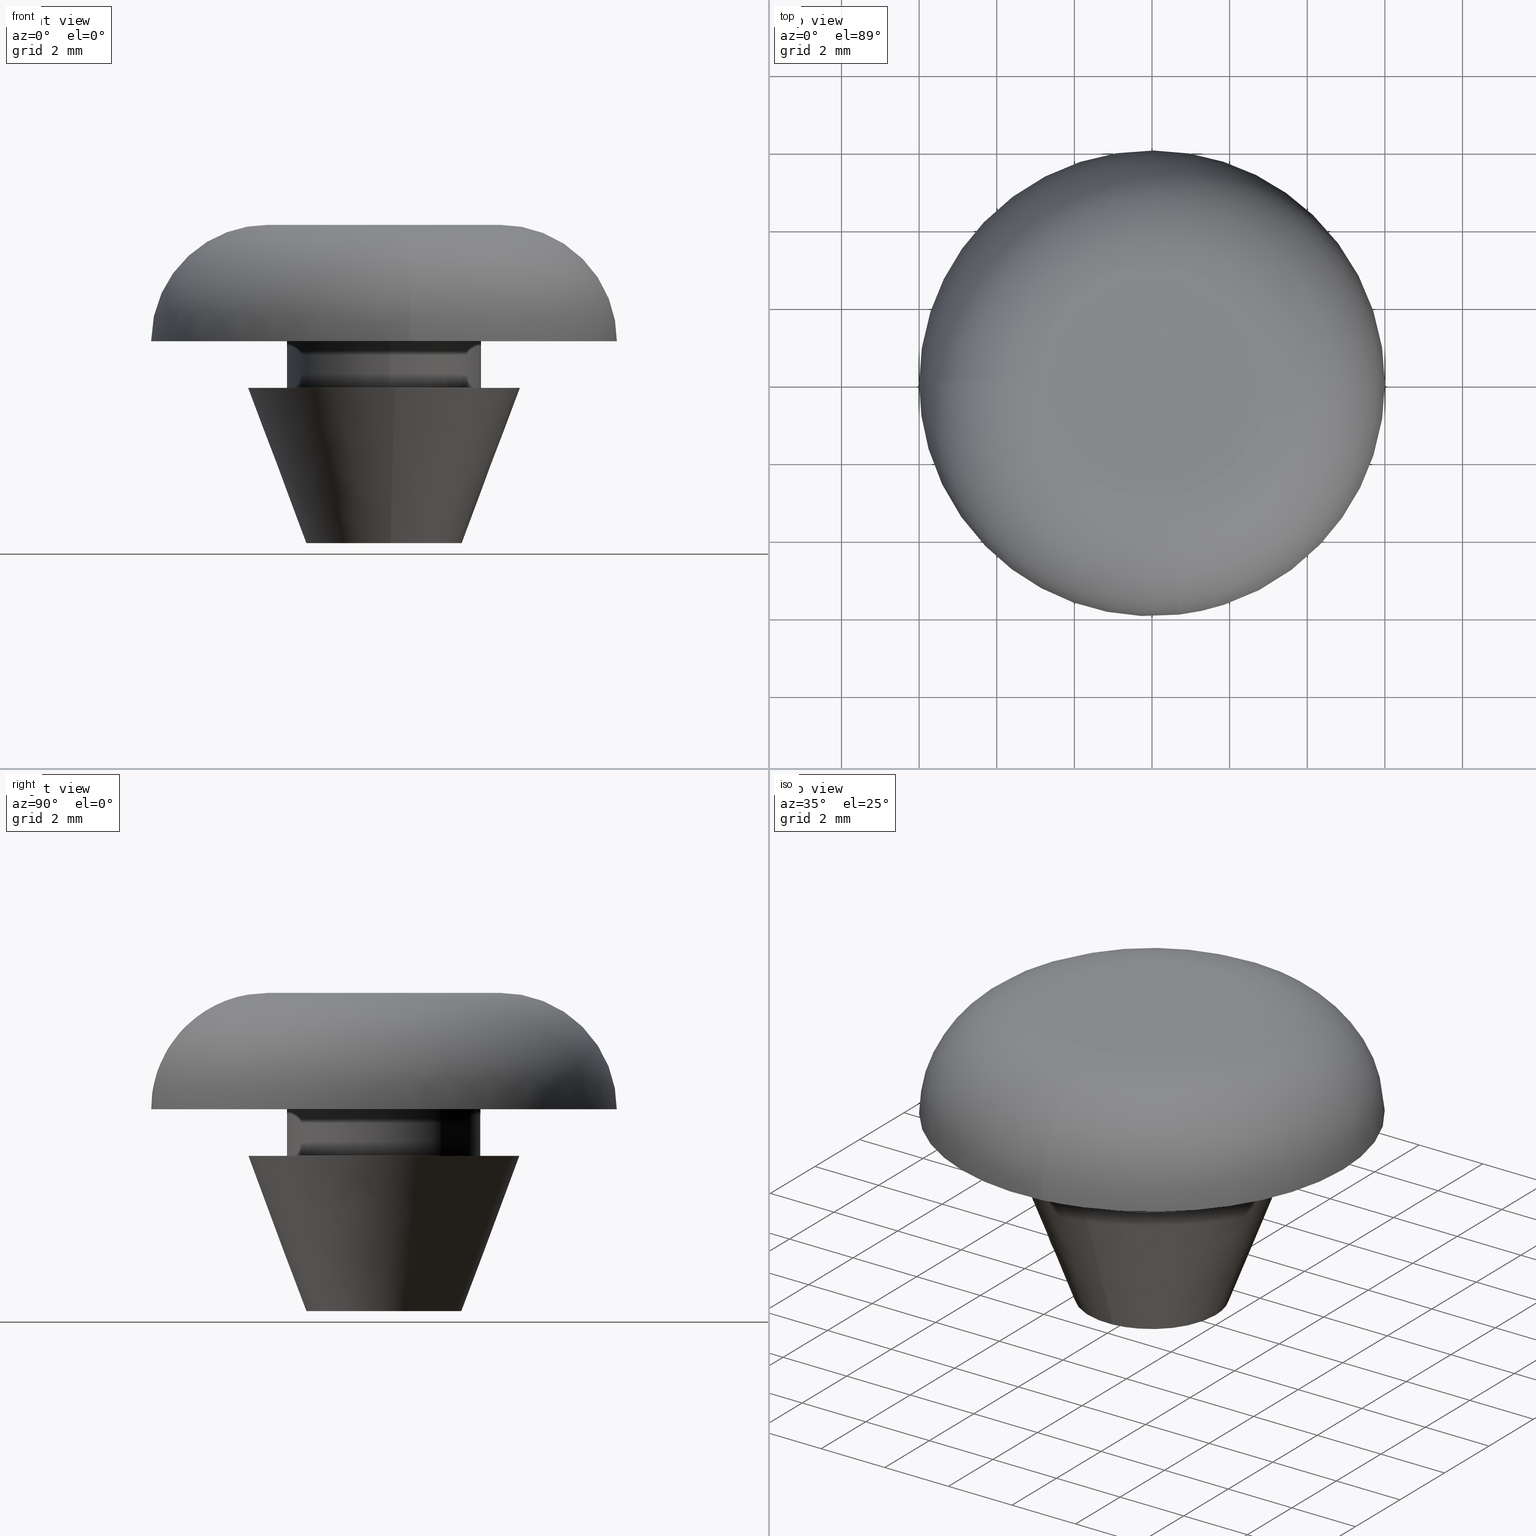
[diagram: canonical four-view strip — front | top / right | iso, engineering-drawing reading convention]
A machine part, canonical four-view strip (front | top / right | iso — engineering-drawing reading convention). The complete STEP part file that produces these views, byte-faithful:
ISO-10303-21;
HEADER;
/****************************************************************
 * Generated by software with PDE/Lib inside                    *
 * PDElib Version 4.4.1-0003, patched  Thursday August 19 11:58 *
 * International Technegroup Inc. (www.iti-oh.com)              *
 ****************************************************************/
FILE_DESCRIPTION((''),'2;1');
FILE_NAME('','2005-12-15T09:47:31',(''),(''),'','CADfix','');
FILE_SCHEMA(('AUTOMOTIVE_DESIGN'));
ENDSEC;
DATA;
#5=APPLICATION_CONTEXT('automotive design');
#6=APPLICATION_PROTOCOL_DEFINITION('Draft International Standard','automotive_design',1998,#5);
#7=PRODUCT_CONTEXT('None',#5,'mechanical');
#8=PRODUCT('cushion','','None',(#7));
#9=PRODUCT_RELATED_PRODUCT_CATEGORY('part','description',(#8));
#10=PRODUCT_DEFINITION_FORMATION('None','None',#8);
#11=PRODUCT_DEFINITION_CONTEXT('part definition',#5,'design');
#12=PRODUCT_DEFINITION('None','None',#10,#11);
#18=(NAMED_UNIT(*)PLANE_ANGLE_UNIT()SI_UNIT($,.RADIAN.));
#19=DIMENSIONAL_EXPONENTS(0.0,0.0,0.0,0.0,0.0,0.0,0.0);
#20=PLANE_ANGLE_MEASURE_WITH_UNIT(PLANE_ANGLE_MEASURE(0.017453292500000),#18);
#24=(CONVERSION_BASED_UNIT('DEGREE',#20)NAMED_UNIT(#19)PLANE_ANGLE_UNIT());
#28=(NAMED_UNIT(*)SI_UNIT($,.STERADIAN.)SOLID_ANGLE_UNIT());
#32=(LENGTH_UNIT()NAMED_UNIT(*)SI_UNIT(.MILLI.,.METRE.));
#34=UNCERTAINTY_MEASURE_WITH_UNIT(LENGTH_MEASURE(0.001000000000000),#32,'DISTANCE_ACCURACY_VALUE','');
#36=(GEOMETRIC_REPRESENTATION_CONTEXT(3)GLOBAL_UNCERTAINTY_ASSIGNED_CONTEXT((#34))GLOBAL_UNIT_ASSIGNED_CONTEXT((#24,#28,#32))REPRESENTATION_CONTEXT('None','None'));
#37=AXIS2_PLACEMENT_3D('',#38,#39,#40);
#38=CARTESIAN_POINT('',(0.0,0.0,0.0));
#39=DIRECTION('',(0.0,0.0,1.0));
#40=DIRECTION('',(1.0,0.0,0.0));
#41=ADVANCED_BREP_SHAPE_REPRESENTATION('',(#37,#891),#36);
#42=PRODUCT_DEFINITION_SHAPE('','',#12);
#43=SHAPE_DEFINITION_REPRESENTATION(#42,#41);
#44=CARTESIAN_POINT('',(0.177051351985138,-1.489514289545500,5.330000000000002));
#45=CARTESIAN_POINT('',(0.134422092956966,-1.494581423172908,5.330000000000002));
#46=CARTESIAN_POINT('',(0.091572809302285,-1.497202197632800,5.330000000000001));
#47=CARTESIAN_POINT('',(-1.405629388330515,-1.588775006935085,5.330000000000001));
#48=CARTESIAN_POINT('',(-1.497202197632800,-0.091572809302285,5.330000000000001));
#49=CARTESIAN_POINT('',(-1.588775006935085,1.405629388330515,5.330000000000001));
#50=CARTESIAN_POINT('',(-0.091572809302285,1.497202197632800,5.330000000000001));
#51=CARTESIAN_POINT('',(0.177051351985138,-1.489514289545500,-0.133250000000000));
#52=CARTESIAN_POINT('',(0.134422092956966,-1.494581423172908,-0.133250000000000));
#53=CARTESIAN_POINT('',(0.091572809302285,-1.497202197632800,-0.133250000000000));
#54=CARTESIAN_POINT('',(-1.405629388330515,-1.588775006935085,-0.133250000000000));
#55=CARTESIAN_POINT('',(-1.497202197632800,-0.091572809302285,-0.133250000000000));
#56=CARTESIAN_POINT('',(-1.588775006935085,1.405629388330515,-0.133250000000000));
#57=CARTESIAN_POINT('',(-0.091572809302285,1.497202197632800,-0.133250000000000));
#65=(BOUNDED_SURFACE()B_SPLINE_SURFACE(2,1,((#44,#51),(#45,#52),(#46,#53),(#47,#54),(#48,#55),(#49,#56),(#50,#57)),.UNSPECIFIED.,.F.,.F.,.U.)B_SPLINE_SURFACE_WITH_KNOTS((3,2,2,3),(2,2),(3.078760800517997,3.141592653589793,4.712388980384690,6.283185307179586),(0.0,5.463250000000002),.UNSPECIFIED.)GEOMETRIC_REPRESENTATION_ITEM()RATIONAL_B_SPLINE_SURFACE(((0.977505800795127,0.977505800795127),(0.988284271247462,0.988284271247462),(1.0,1.0),(0.707106781186548,0.707106781186548),(1.0,1.0),(0.707106781186548,0.707106781186548),(1.0,1.0)))REPRESENTATION_ITEM('')SURFACE());
#66=CARTESIAN_POINT('',(0.177051351995047,-1.489514289544322,5.200000000000000));
#67=VERTEX_POINT('',#66);
#68=CARTESIAN_POINT('',(-1.500000000000000,0.0,5.200000000000000));
#69=VERTEX_POINT('',#68);
#70=CARTESIAN_POINT('',(0.177051351995047,-1.489514289544321,5.200000000000000));
#71=CARTESIAN_POINT('',(0.088836179487880,-1.500000000000000,5.200000000000002));
#72=CARTESIAN_POINT('',(0.0,-1.500000000000000,5.200000000000000));
#73=CARTESIAN_POINT('',(-1.500000000000000,-1.500000000000000,5.199999999999999));
#74=CARTESIAN_POINT('',(-1.500000000000000,0.0,5.200000000000000));
#82=(BOUNDED_CURVE()B_SPLINE_CURVE(2,(#70,#71,#72,#73,#74),.UNSPECIFIED.,.F.,.U.)B_SPLINE_CURVE_WITH_KNOTS((3,2,3),(0.229562473513396,0.250000000000000,0.500000000000000),.UNSPECIFIED.)CURVE()GEOMETRIC_REPRESENTATION_ITEM()RATIONAL_B_SPLINE_CURVE((0.956026754183478,0.976055948331013,1.0,0.707106781186548,1.0))REPRESENTATION_ITEM(''));
#83=EDGE_CURVE('',#67,#69,#82,.T.);
#84=ORIENTED_EDGE('',*,*,#83,.F.);
#85=CARTESIAN_POINT('',(0.177051351995047,-1.489514289544322,-8.518285E-017));
#86=VERTEX_POINT('',#85);
#87=CARTESIAN_POINT('',(0.177051351995047,-1.489514289544322,5.200000000000000));
#88=CARTESIAN_POINT('',(0.177051351995047,-1.489514289544322,-8.518285E-017));
#89=QUASI_UNIFORM_CURVE('',1,(#87,#88),.UNSPECIFIED.,.F.,.U.);
#90=EDGE_CURVE('',#67,#86,#89,.T.);
#91=ORIENTED_EDGE('',*,*,#90,.T.);
#92=CARTESIAN_POINT('',(-1.500000000000000,0.0,0.0));
#93=VERTEX_POINT('',#92);
#94=CARTESIAN_POINT('',(0.177051351995047,-1.489514289544321,-8.518285E-017));
#95=CARTESIAN_POINT('',(0.088836179487880,-1.500000000000000,0.0));
#96=CARTESIAN_POINT('',(0.0,-1.500000000000000,0.0));
#97=CARTESIAN_POINT('',(-1.500000000000000,-1.500000000000000,0.0));
#98=CARTESIAN_POINT('',(-1.500000000000000,0.0,0.0));
#106=(BOUNDED_CURVE()B_SPLINE_CURVE(2,(#94,#95,#96,#97,#98),.UNSPECIFIED.,.F.,.U.)B_SPLINE_CURVE_WITH_KNOTS((3,2,3),(0.229562473513396,0.250000000000000,0.500000000000000),.UNSPECIFIED.)CURVE()GEOMETRIC_REPRESENTATION_ITEM()RATIONAL_B_SPLINE_CURVE((0.956026754183478,0.976055948331013,1.0,0.707106781186548,1.0))REPRESENTATION_ITEM(''));
#107=EDGE_CURVE('',#86,#93,#106,.T.);
#108=ORIENTED_EDGE('',*,*,#107,.T.);
#109=CARTESIAN_POINT('',(-0.091572809316450,1.497202197631934,-8.326673E-017));
#110=VERTEX_POINT('',#109);
#111=CARTESIAN_POINT('',(-1.500000000000000,0.0,0.0));
#112=CARTESIAN_POINT('',(-1.500000000000000,1.411059100331790,0.0));
#113=CARTESIAN_POINT('',(-0.091572809316450,1.497202197631934,-8.326673E-017));
#121=(BOUNDED_CURVE()B_SPLINE_CURVE(2,(#111,#112,#113),.UNSPECIFIED.,.F.,.U.)B_SPLINE_CURVE_WITH_KNOTS((3,3),(0.500000000000000,0.739332962238703),.UNSPECIFIED.)CURVE()GEOMETRIC_REPRESENTATION_ITEM()RATIONAL_B_SPLINE_CURVE((1.0,0.719603993286991,0.976072041666204))REPRESENTATION_ITEM(''));
#122=EDGE_CURVE('',#93,#110,#121,.T.);
#123=ORIENTED_EDGE('',*,*,#122,.T.);
#124=CARTESIAN_POINT('',(-0.091572809316450,1.497202197631934,5.200000000000000));
#125=VERTEX_POINT('',#124);
#126=CARTESIAN_POINT('',(-0.091572809316450,1.497202197631934,5.200000000000000));
#127=CARTESIAN_POINT('',(-0.091572809316450,1.497202197631934,-8.326673E-017));
#128=QUASI_UNIFORM_CURVE('',1,(#126,#127),.UNSPECIFIED.,.F.,.U.);
#129=EDGE_CURVE('',#125,#110,#128,.T.);
#130=ORIENTED_EDGE('',*,*,#129,.F.);
#131=CARTESIAN_POINT('',(-1.500000000000000,0.0,5.200000000000000));
#132=CARTESIAN_POINT('',(-1.500000000000000,1.411059100331790,5.199999999999999));
#133=CARTESIAN_POINT('',(-0.091572809316450,1.497202197631934,5.200000000000000));
#141=(BOUNDED_CURVE()B_SPLINE_CURVE(2,(#131,#132,#133),.UNSPECIFIED.,.F.,.U.)B_SPLINE_CURVE_WITH_KNOTS((3,3),(0.500000000000000,0.739332962238703),.UNSPECIFIED.)CURVE()GEOMETRIC_REPRESENTATION_ITEM()RATIONAL_B_SPLINE_CURVE((1.0,0.719603993286991,0.976072041666204))REPRESENTATION_ITEM(''));
#142=EDGE_CURVE('',#69,#125,#141,.T.);
#143=ORIENTED_EDGE('',*,*,#142,.F.);
#144=EDGE_LOOP('',(#84,#91,#108,#123,#130,#143));
#145=FACE_OUTER_BOUND('',#144,.T.);
#146=ADVANCED_FACE('',(#145),#65,.F.);
#147=CARTESIAN_POINT('',(-0.091572809302285,1.497202197632800,5.330000000000001));
#148=CARTESIAN_POINT('',(1.405629388330515,1.588775006935085,5.330000000000001));
#149=CARTESIAN_POINT('',(1.497202197632800,0.091572809302285,5.330000000000001));
#150=CARTESIAN_POINT('',(1.583679295098791,-1.322315236259252,5.330000000000002));
#151=CARTESIAN_POINT('',(0.177051351985138,-1.489514289545500,5.330000000000002));
#152=CARTESIAN_POINT('',(-0.091572809302285,1.497202197632800,-0.133250000000000));
#153=CARTESIAN_POINT('',(1.405629388330515,1.588775006935085,-0.133250000000000));
#154=CARTESIAN_POINT('',(1.497202197632800,0.091572809302285,-0.133250000000000));
#155=CARTESIAN_POINT('',(1.583679295098791,-1.322315236259252,-0.133250000000000));
#156=CARTESIAN_POINT('',(0.177051351985138,-1.489514289545500,-0.133250000000000));
#164=(BOUNDED_SURFACE()B_SPLINE_SURFACE(2,1,((#147,#152),(#148,#153),(#149,#154),(#150,#155),(#151,#156)),.UNSPECIFIED.,.F.,.F.,.U.)B_SPLINE_SURFACE_WITH_KNOTS((3,2,3),(2,2),(0.0,1.570796326794897,3.078760800517997),(0.0,5.463250000000002),.UNSPECIFIED.)GEOMETRIC_REPRESENTATION_ITEM()RATIONAL_B_SPLINE_SURFACE(((1.0,1.0),(0.707106781186548,0.707106781186548),(1.0,1.0),(0.718822509939086,0.718822509939086),(0.977505800795127,0.977505800795127)))REPRESENTATION_ITEM('')SURFACE());
#165=CARTESIAN_POINT('',(1.500000000000000,0.0,5.200000000000000));
#166=VERTEX_POINT('',#165);
#167=CARTESIAN_POINT('',(1.500000000000000,0.0,5.200000000000000));
#168=CARTESIAN_POINT('',(1.500000000000000,-1.332261788909200,5.200000000000000));
#169=CARTESIAN_POINT('',(0.177051351995047,-1.489514289544321,5.200000000000000));
#177=(BOUNDED_CURVE()B_SPLINE_CURVE(2,(#167,#168,#169),.UNSPECIFIED.,.F.,.U.)B_SPLINE_CURVE_WITH_KNOTS((3,3),(0.0,0.229562473513396),.UNSPECIFIED.)CURVE()GEOMETRIC_REPRESENTATION_ITEM()RATIONAL_B_SPLINE_CURVE((1.0,0.731050832855535,0.956026754183478))REPRESENTATION_ITEM(''));
#178=EDGE_CURVE('',#166,#67,#177,.T.);
#179=ORIENTED_EDGE('',*,*,#178,.F.);
#180=CARTESIAN_POINT('',(-0.091572809316450,1.497202197631934,5.200000000000000));
#181=CARTESIAN_POINT('',(-0.045829144962088,1.500000000000000,5.200000000000000));
#182=CARTESIAN_POINT('',(0.0,1.500000000000000,5.200000000000000));
#183=CARTESIAN_POINT('',(1.500000000000000,1.500000000000000,5.199999999999999));
#184=CARTESIAN_POINT('',(1.500000000000000,0.0,5.200000000000000));
#192=(BOUNDED_CURVE()B_SPLINE_CURVE(2,(#180,#181,#182,#183,#184),.UNSPECIFIED.,.F.,.U.)B_SPLINE_CURVE_WITH_KNOTS((3,2,3),(0.739332962238703,0.750000000000000,1.0),.UNSPECIFIED.)CURVE()GEOMETRIC_REPRESENTATION_ITEM()RATIONAL_B_SPLINE_CURVE((0.976072041666204,0.987502787899557,1.0,0.707106781186548,1.0))REPRESENTATION_ITEM(''));
#193=EDGE_CURVE('',#125,#166,#192,.T.);
#194=ORIENTED_EDGE('',*,*,#193,.F.);
#195=ORIENTED_EDGE('',*,*,#129,.T.);
#196=CARTESIAN_POINT('',(1.500000000000000,0.0,0.0));
#197=VERTEX_POINT('',#196);
#198=CARTESIAN_POINT('',(-0.091572809316450,1.497202197631934,-8.326673E-017));
#199=CARTESIAN_POINT('',(-0.045829144962088,1.500000000000000,0.0));
#200=CARTESIAN_POINT('',(0.0,1.500000000000000,0.0));
#201=CARTESIAN_POINT('',(1.500000000000000,1.500000000000000,0.0));
#202=CARTESIAN_POINT('',(1.500000000000000,0.0,0.0));
#210=(BOUNDED_CURVE()B_SPLINE_CURVE(2,(#198,#199,#200,#201,#202),.UNSPECIFIED.,.F.,.U.)B_SPLINE_CURVE_WITH_KNOTS((3,2,3),(0.739332962238703,0.750000000000000,1.0),.UNSPECIFIED.)CURVE()GEOMETRIC_REPRESENTATION_ITEM()RATIONAL_B_SPLINE_CURVE((0.976072041666204,0.987502787899557,1.0,0.707106781186548,1.0))REPRESENTATION_ITEM(''));
#211=EDGE_CURVE('',#110,#197,#210,.T.);
#212=ORIENTED_EDGE('',*,*,#211,.T.);
#213=CARTESIAN_POINT('',(1.500000000000000,0.0,0.0));
#214=CARTESIAN_POINT('',(1.500000000000000,-1.332261788909200,0.0));
#215=CARTESIAN_POINT('',(0.177051351995047,-1.489514289544321,-8.518285E-017));
#223=(BOUNDED_CURVE()B_SPLINE_CURVE(2,(#213,#214,#215),.UNSPECIFIED.,.F.,.U.)B_SPLINE_CURVE_WITH_KNOTS((3,3),(0.0,0.229562473513396),.UNSPECIFIED.)CURVE()GEOMETRIC_REPRESENTATION_ITEM()RATIONAL_B_SPLINE_CURVE((1.0,0.731050832855535,0.956026754183478))REPRESENTATION_ITEM(''));
#224=EDGE_CURVE('',#197,#86,#223,.T.);
#225=ORIENTED_EDGE('',*,*,#224,.T.);
#226=ORIENTED_EDGE('',*,*,#90,.F.);
#227=EDGE_LOOP('',(#179,#194,#195,#212,#225,#226));
#228=FACE_OUTER_BOUND('',#227,.T.);
#229=ADVANCED_FACE('',(#228),#164,.F.);
#230=CARTESIAN_POINT('',(-0.295085586641896,2.482523815909166,5.230000000000003));
#231=CARTESIAN_POINT('',(-0.224036821594944,2.490969038621514,5.230000000000001));
#232=CARTESIAN_POINT('',(-0.152621348837143,2.495336996054667,5.230000000000001));
#233=CARTESIAN_POINT('',(2.342715647217524,2.647958344891809,5.230000000000002));
#234=CARTESIAN_POINT('',(2.495336996054667,0.152621348837143,5.230000000000001));
#235=CARTESIAN_POINT('',(2.647958344891809,-2.342715647217524,5.230000000000002));
#236=CARTESIAN_POINT('',(0.152621348837143,-2.495336996054667,5.230000000000001));
#237=CARTESIAN_POINT('',(-0.295085586641896,2.482523815909166,3.969250000000000));
#238=CARTESIAN_POINT('',(-0.224036821594944,2.490969038621514,3.969250000000000));
#239=CARTESIAN_POINT('',(-0.152621348837143,2.495336996054667,3.969250000000000));
#240=CARTESIAN_POINT('',(2.342715647217524,2.647958344891809,3.969250000000000));
#241=CARTESIAN_POINT('',(2.495336996054667,0.152621348837143,3.969250000000000));
#242=CARTESIAN_POINT('',(2.647958344891809,-2.342715647217524,3.969250000000000));
#243=CARTESIAN_POINT('',(0.152621348837143,-2.495336996054667,3.969250000000000));
#251=(BOUNDED_SURFACE()B_SPLINE_SURFACE(2,1,((#230,#237),(#231,#238),(#232,#239),(#233,#240),(#234,#241),(#235,#242),(#236,#243)),.UNSPECIFIED.,.F.,.F.,.U.)B_SPLINE_SURFACE_WITH_KNOTS((3,2,2,3),(2,2),(0.0,0.165685424949238,4.307821048680188,8.449956672411137),(0.0,1.0),.UNSPECIFIED.)GEOMETRIC_REPRESENTATION_ITEM()RATIONAL_B_SPLINE_SURFACE(((0.977505800795127,0.977505800795127),(0.988284271247462,0.988284271247462),(1.0,1.0),(0.707106781186548,0.707106781186548),(1.0,1.0),(0.707106781186548,0.707106781186548),(1.0,1.0)))REPRESENTATION_ITEM('')SURFACE());
#252=CARTESIAN_POINT('',(-0.295083869908955,2.482524019967695,5.200000000000022));
#253=VERTEX_POINT('',#252);
#254=CARTESIAN_POINT('',(2.500000000000000,0.0,5.200000000000000));
#255=VERTEX_POINT('',#254);
#256=CARTESIAN_POINT('',(-0.295083869908955,2.482524019967694,5.200000000000022));
#257=CARTESIAN_POINT('',(-0.148059431688853,2.499999999999999,5.199999999999999));
#258=CARTESIAN_POINT('',(0.0,2.500000000000000,5.200000000000000));
#259=CARTESIAN_POINT('',(2.500000000000000,2.500000000000000,5.199999999999999));
#260=CARTESIAN_POINT('',(2.500000000000000,0.0,5.200000000000000));
#268=(BOUNDED_CURVE()B_SPLINE_CURVE(2,(#256,#257,#258,#259,#260),.UNSPECIFIED.,.F.,.U.)B_SPLINE_CURVE_WITH_KNOTS((3,2,3),(0.229562590386006,0.250000000000000,0.500000000000000),.UNSPECIFIED.)CURVE()GEOMETRIC_REPRESENTATION_ITEM()RATIONAL_B_SPLINE_CURVE((0.956026983258707,0.976056085255794,1.0,0.707106781186548,1.0))REPRESENTATION_ITEM(''));
#269=EDGE_CURVE('',#253,#255,#268,.T.);
#270=ORIENTED_EDGE('',*,*,#269,.T.);
#271=CARTESIAN_POINT('',(0.152618122186380,-2.495337193400895,5.199999999999952));
#272=VERTEX_POINT('',#271);
#273=CARTESIAN_POINT('',(2.500000000000000,0.0,5.200000000000000));
#274=CARTESIAN_POINT('',(2.500000000000000,-2.351768213950561,5.200000000000001));
#275=CARTESIAN_POINT('',(0.152618122186380,-2.495337193400895,5.199999999999952));
#283=(BOUNDED_CURVE()B_SPLINE_CURVE(2,(#273,#274,#275),.UNSPECIFIED.,.F.,.U.)B_SPLINE_CURVE_WITH_KNOTS((3,3),(0.500000000000000,0.739333185357453),.UNSPECIFIED.)CURVE()GEOMETRIC_REPRESENTATION_ITEM()RATIONAL_B_SPLINE_CURVE((1.0,0.719603731887116,0.976072519852624))REPRESENTATION_ITEM(''));
#284=EDGE_CURVE('',#255,#272,#283,.T.);
#285=ORIENTED_EDGE('',*,*,#284,.T.);
#286=CARTESIAN_POINT('',(0.152618161030179,-2.495337191025206,4.0));
#287=VERTEX_POINT('',#286);
#288=CARTESIAN_POINT('',(0.152618122186380,-2.495337193400895,5.199999999999952));
#289=CARTESIAN_POINT('',(0.152618161030179,-2.495337191025206,4.0));
#290=QUASI_UNIFORM_CURVE('',1,(#288,#289),.UNSPECIFIED.,.F.,.U.);
#291=EDGE_CURVE('',#272,#287,#290,.T.);
#292=ORIENTED_EDGE('',*,*,#291,.T.);
#293=CARTESIAN_POINT('',(2.500000000000000,0.0,4.0));
#294=VERTEX_POINT('',#293);
#295=CARTESIAN_POINT('',(2.500000000000000,0.0,4.0));
#296=CARTESIAN_POINT('',(2.500000000000000,-2.351768177273230,4.0));
#297=CARTESIAN_POINT('',(0.152618161030179,-2.495337191025206,4.0));
#305=(BOUNDED_CURVE()B_SPLINE_CURVE(2,(#295,#296,#297),.UNSPECIFIED.,.F.,.U.)B_SPLINE_CURVE_WITH_KNOTS((3,3),(0.500000000000000,0.739333182671493),.UNSPECIFIED.)CURVE()GEOMETRIC_REPRESENTATION_ITEM()RATIONAL_B_SPLINE_CURVE((1.0,0.719603735033914,0.976072514096089))REPRESENTATION_ITEM(''));
#306=EDGE_CURVE('',#294,#287,#305,.T.);
#307=ORIENTED_EDGE('',*,*,#306,.F.);
#308=CARTESIAN_POINT('',(-0.295083890616084,2.482524017506368,4.0));
#309=VERTEX_POINT('',#308);
#310=CARTESIAN_POINT('',(-0.295083890616084,2.482524017506368,4.000000000000000));
#311=CARTESIAN_POINT('',(-0.148059442151872,2.500000000000000,4.000000000000001));
#312=CARTESIAN_POINT('',(0.0,2.500000000000000,4.0));
#313=CARTESIAN_POINT('',(2.500000000000000,2.500000000000000,4.000000000000000));
#314=CARTESIAN_POINT('',(2.500000000000000,0.0,4.0));
#322=(BOUNDED_CURVE()B_SPLINE_CURVE(2,(#310,#311,#312,#313,#314),.UNSPECIFIED.,.F.,.U.)B_SPLINE_CURVE_WITH_KNOTS((3,2,3),(0.229562588976323,0.250000000000000,0.500000000000000),.UNSPECIFIED.)CURVE()GEOMETRIC_REPRESENTATION_ITEM()RATIONAL_B_SPLINE_CURVE((0.956026980495667,0.976056083604247,1.0,0.707106781186548,1.0))REPRESENTATION_ITEM(''));
#323=EDGE_CURVE('',#309,#294,#322,.T.);
#324=ORIENTED_EDGE('',*,*,#323,.F.);
#325=CARTESIAN_POINT('',(-0.295083869908955,2.482524019967695,5.200000000000022));
#326=CARTESIAN_POINT('',(-0.295083890616084,2.482524017506368,4.0));
#327=QUASI_UNIFORM_CURVE('',1,(#325,#326),.UNSPECIFIED.,.F.,.U.);
#328=EDGE_CURVE('',#253,#309,#327,.T.);
#329=ORIENTED_EDGE('',*,*,#328,.F.);
#330=EDGE_LOOP('',(#270,#285,#292,#307,#324,#329));
#331=FACE_OUTER_BOUND('',#330,.T.);
#332=ADVANCED_FACE('',(#331),#251,.T.);
#333=CARTESIAN_POINT('',(0.152621348837143,-2.495336996054667,5.230000000000001));
#334=CARTESIAN_POINT('',(-2.342715647217524,-2.647958344891809,5.230000000000002));
#335=CARTESIAN_POINT('',(-2.495336996054667,-0.152621348837143,5.230000000000001));
#336=CARTESIAN_POINT('',(-2.639465491831319,2.203858727098751,5.230000000000001));
#337=CARTESIAN_POINT('',(-0.295085586641896,2.482523815909166,5.230000000000003));
#338=CARTESIAN_POINT('',(0.152621348837143,-2.495336996054667,3.969250000000000));
#339=CARTESIAN_POINT('',(-2.342715647217524,-2.647958344891809,3.969250000000000));
#340=CARTESIAN_POINT('',(-2.495336996054667,-0.152621348837143,3.969250000000000));
#341=CARTESIAN_POINT('',(-2.639465491831319,2.203858727098751,3.969250000000000));
#342=CARTESIAN_POINT('',(-0.295085586641896,2.482523815909166,3.969250000000000));
#350=(BOUNDED_SURFACE()B_SPLINE_SURFACE(2,1,((#333,#338),(#334,#339),(#335,#340),(#336,#341),(#337,#342)),.UNSPECIFIED.,.F.,.F.,.U.)B_SPLINE_SURFACE_WITH_KNOTS((3,2,3),(2,2),(0.0,4.142135623730949,8.118585822512660),(0.0,1.0),.UNSPECIFIED.)GEOMETRIC_REPRESENTATION_ITEM()RATIONAL_B_SPLINE_SURFACE(((1.0,1.0),(0.707106781186548,0.707106781186548),(1.0,1.0),(0.718822509939086,0.718822509939086),(0.977505800795127,0.977505800795127)))REPRESENTATION_ITEM('')SURFACE());
#351=CARTESIAN_POINT('',(-2.500000000000000,0.0,5.200000000000000));
#352=VERTEX_POINT('',#351);
#353=CARTESIAN_POINT('',(-2.500000000000000,0.0,5.200000000000000));
#354=CARTESIAN_POINT('',(-2.500000000000001,2.220437861180431,5.200000000000000));
#355=CARTESIAN_POINT('',(-0.295083869908955,2.482524019967694,5.200000000000022));
#363=(BOUNDED_CURVE()B_SPLINE_CURVE(2,(#353,#354,#355),.UNSPECIFIED.,.F.,.U.)B_SPLINE_CURVE_WITH_KNOTS((3,3),(0.0,0.229562590386006),.UNSPECIFIED.)CURVE()GEOMETRIC_REPRESENTATION_ITEM()RATIONAL_B_SPLINE_CURVE((1.0,0.731050695930754,0.956026983258707))REPRESENTATION_ITEM(''));
#364=EDGE_CURVE('',#352,#253,#363,.T.);
#365=ORIENTED_EDGE('',*,*,#364,.T.);
#366=ORIENTED_EDGE('',*,*,#328,.T.);
#367=CARTESIAN_POINT('',(-2.500000000000000,0.0,4.0));
#368=VERTEX_POINT('',#367);
#369=CARTESIAN_POINT('',(-2.500000000000000,0.0,4.0));
#370=CARTESIAN_POINT('',(-2.500000000000000,2.220437842529027,4.0));
#371=CARTESIAN_POINT('',(-0.295083890616084,2.482524017506368,4.000000000000000));
#379=(BOUNDED_CURVE()B_SPLINE_CURVE(2,(#369,#370,#371),.UNSPECIFIED.,.F.,.U.)B_SPLINE_CURVE_WITH_KNOTS((3,3),(0.0,0.229562588976323),.UNSPECIFIED.)CURVE()GEOMETRIC_REPRESENTATION_ITEM()RATIONAL_B_SPLINE_CURVE((1.0,0.731050697582300,0.956026980495667))REPRESENTATION_ITEM(''));
#380=EDGE_CURVE('',#368,#309,#379,.T.);
#381=ORIENTED_EDGE('',*,*,#380,.F.);
#382=CARTESIAN_POINT('',(0.152618161030179,-2.495337191025206,4.0));
#383=CARTESIAN_POINT('',(0.076380309873996,-2.500000000000000,4.000000000000000));
#384=CARTESIAN_POINT('',(0.0,-2.500000000000000,4.0));
#385=CARTESIAN_POINT('',(-2.500000000000000,-2.500000000000000,4.000000000000000));
#386=CARTESIAN_POINT('',(-2.500000000000000,0.0,4.0));
#394=(BOUNDED_CURVE()B_SPLINE_CURVE(2,(#382,#383,#384,#385,#386),.UNSPECIFIED.,.F.,.U.)B_SPLINE_CURVE_WITH_KNOTS((3,2,3),(0.739333182671493,0.750000000000000,1.0),.UNSPECIFIED.)CURVE()GEOMETRIC_REPRESENTATION_ITEM()RATIONAL_B_SPLINE_CURVE((0.976072514096089,0.987503046152634,1.0,0.707106781186548,1.0))REPRESENTATION_ITEM(''));
#395=EDGE_CURVE('',#287,#368,#394,.T.);
#396=ORIENTED_EDGE('',*,*,#395,.F.);
#397=ORIENTED_EDGE('',*,*,#291,.F.);
#398=CARTESIAN_POINT('',(0.152618122186380,-2.495337193400895,5.199999999999952));
#399=CARTESIAN_POINT('',(0.076380290397643,-2.500000000000000,5.200000000000000));
#400=CARTESIAN_POINT('',(0.0,-2.500000000000000,5.200000000000000));
#401=CARTESIAN_POINT('',(-2.500000000000000,-2.500000000000000,5.199999999999999));
#402=CARTESIAN_POINT('',(-2.500000000000000,0.0,5.200000000000000));
#410=(BOUNDED_CURVE()B_SPLINE_CURVE(2,(#398,#399,#400,#401,#402),.UNSPECIFIED.,.F.,.U.)B_SPLINE_CURVE_WITH_KNOTS((3,2,3),(0.739333185357453,0.750000000000000,1.0),.UNSPECIFIED.)CURVE()GEOMETRIC_REPRESENTATION_ITEM()RATIONAL_B_SPLINE_CURVE((0.976072519852624,0.987503049299432,1.0,0.707106781186548,1.0))REPRESENTATION_ITEM(''));
#411=EDGE_CURVE('',#272,#352,#410,.T.);
#412=ORIENTED_EDGE('',*,*,#411,.T.);
#413=EDGE_LOOP('',(#365,#366,#381,#396,#397,#412));
#414=FACE_OUTER_BOUND('',#413,.T.);
#415=ADVANCED_FACE('',(#414),#350,.T.);
#416=CARTESIAN_POINT('',(-0.126465591123226,1.958615381646562,-0.100000000000000));
#417=CARTESIAN_POINT('',(-0.140180608287281,1.957535986386623,-0.100000000000000));
#418=CARTESIAN_POINT('',(-2.110426242817160,1.802474292085366,-0.100000000000000));
#419=CARTESIAN_POINT('',(-1.956450267451263,-0.153975975365897,-0.100000000000000));
#420=CARTESIAN_POINT('',(-1.802474292085366,-2.110426242817160,-0.100000000000000));
#421=CARTESIAN_POINT('',(0.167769523391997,-1.955364691678441,-0.100000000000000));
#422=CARTESIAN_POINT('',(0.181482742661118,-1.954285437915902,-0.100000000000000));
#423=CARTESIAN_POINT('',(-0.228020682848454,3.531433434137581,4.102499999999999));
#424=CARTESIAN_POINT('',(-0.252749208222433,3.529487256983395,4.102500000000001));
#425=CARTESIAN_POINT('',(-3.805152284620812,3.249907071541816,4.102499999999999));
#426=CARTESIAN_POINT('',(-3.527529678081313,-0.277622606539498,4.102500000000000));
#427=CARTESIAN_POINT('',(-3.249907071541816,-3.805152284620812,4.102499999999999));
#428=CARTESIAN_POINT('',(0.302492725058532,-3.525572357304935,4.102500000000000));
#429=CARTESIAN_POINT('',(0.327218008782140,-3.523626435274163,4.102500000000000));
#437=(BOUNDED_SURFACE()B_SPLINE_SURFACE(2,1,((#416,#423),(#417,#424),(#418,#425),(#419,#426),(#420,#427),(#421,#428),(#422,#429)),.UNSPECIFIED.,.F.,.F.,.U.)B_SPLINE_SURFACE_WITH_KNOTS((3,1,2,1,3),(2,2),(0.0,0.058633468558026,5.921308676996217,11.783983885434409,11.842609599958450),(0.0,4.488326671811775),.UNSPECIFIED.)GEOMETRIC_REPRESENTATION_ITEM()RATIONAL_B_SPLINE_SURFACE(((1.005858535472489,1.005858535472489),(1.002929267736244,1.002929267736244),(0.707106781186548,0.707106781186548),(1.0,1.0),(0.707106781186548,0.707106781186548),(1.002928880352688,1.002928880352688),(1.005857760705376,1.005857760705376)))REPRESENTATION_ITEM('')SURFACE());
#438=CARTESIAN_POINT('',(-2.0,0.0,0.0));
#439=VERTEX_POINT('',#438);
#440=CARTESIAN_POINT('',(-0.156914889525361,1.993833847277193,-0.000002871258541));
#441=VERTEX_POINT('',#440);
#442=CARTESIAN_POINT('',(-2.0,0.0,0.0));
#443=CARTESIAN_POINT('',(-1.999999957761449,1.848783439220838,-0.000001435629271));
#444=CARTESIAN_POINT('',(-0.156914889525361,1.993833847277194,-0.000002871258541));
#452=(BOUNDED_CURVE()B_SPLINE_CURVE(2,(#442,#443,#444),.UNSPECIFIED.,.F.,.U.)B_SPLINE_CURVE_WITH_KNOTS((3,3),(0.0,0.236331577260723),.UNSPECIFIED.)CURVE()GEOMETRIC_REPRESENTATION_ITEM()RATIONAL_B_SPLINE_CURVE((1.0,0.723120334515387,0.969723933473973))REPRESENTATION_ITEM(''));
#453=EDGE_CURVE('',#439,#441,#452,.T.);
#454=ORIENTED_EDGE('',*,*,#453,.F.);
#455=CARTESIAN_POINT('',(0.156914889525361,-1.993833847277193,-0.000002871258541));
#456=VERTEX_POINT('',#455);
#457=CARTESIAN_POINT('',(0.156914889525361,-1.993833847277194,-0.000002871258541));
#458=CARTESIAN_POINT('',(0.078578514880235,-1.999998946086843,-0.000002819118334));
#459=CARTESIAN_POINT('',(-0.000000081283530,-1.999998967173517,-0.000002762713466));
#460=CARTESIAN_POINT('',(-2.000000039044978,-1.999999503876272,-0.000001327084196));
#461=CARTESIAN_POINT('',(-2.0,0.0,0.0));
#469=(BOUNDED_CURVE()B_SPLINE_CURVE(2,(#457,#458,#459,#460,#461),.UNSPECIFIED.,.F.,.U.)B_SPLINE_CURVE_WITH_KNOTS((3,2,3),(0.736331577260723,0.750000000000000,1.0),.UNSPECIFIED.)CURVE()GEOMETRIC_REPRESENTATION_ITEM()RATIONAL_B_SPLINE_CURVE((0.969723933473973,0.983986446671160,1.0,0.707106781186548,1.0))REPRESENTATION_ITEM(''));
#470=EDGE_CURVE('',#456,#439,#469,.T.);
#471=ORIENTED_EDGE('',*,*,#470,.F.);
#472=CARTESIAN_POINT('',(0.274605915676212,-3.489210439869961,3.999999200999094));
#473=VERTEX_POINT('',#472);
#474=CARTESIAN_POINT('',(0.156914889525361,-1.993833847277193,-0.000002871258541));
#475=CARTESIAN_POINT('',(0.274605915676212,-3.489210439869961,3.999999200999094));
#476=QUASI_UNIFORM_CURVE('',1,(#474,#475),.UNSPECIFIED.,.F.,.U.);
#477=EDGE_CURVE('',#456,#473,#476,.T.);
#478=ORIENTED_EDGE('',*,*,#477,.T.);
#479=CARTESIAN_POINT('',(-3.500000000000000,0.0,4.0));
#480=VERTEX_POINT('',#479);
#481=CARTESIAN_POINT('',(0.274605915676211,-3.489210439869960,3.999999200999094));
#482=CARTESIAN_POINT('',(0.137514924516652,-3.500000000000000,4.000000000000001));
#483=CARTESIAN_POINT('',(0.0,-3.500000000000000,4.0));
#484=CARTESIAN_POINT('',(-3.500000000000000,-3.500000000000000,4.0));
#485=CARTESIAN_POINT('',(-3.500000000000000,0.0,4.0));
#493=(BOUNDED_CURVE()B_SPLINE_CURVE(2,(#481,#482,#483,#484,#485),.UNSPECIFIED.,.F.,.U.)B_SPLINE_CURVE_WITH_KNOTS((3,2,3),(0.736331344646406,0.750000000000000,1.0),.UNSPECIFIED.)CURVE()GEOMETRIC_REPRESENTATION_ITEM()RATIONAL_B_SPLINE_CURVE((0.969723448024941,0.983986174146537,1.0,0.707106781186547,1.0))REPRESENTATION_ITEM(''));
#494=EDGE_CURVE('',#473,#480,#493,.T.);
#495=ORIENTED_EDGE('',*,*,#494,.T.);
#496=CARTESIAN_POINT('',(-0.274605915676212,3.489210439869961,3.999999200999094));
#497=VERTEX_POINT('',#496);
#498=CARTESIAN_POINT('',(-3.500000000000000,0.0,4.0));
#499=CARTESIAN_POINT('',(-3.500000000000000,3.235367554060421,4.000000000000000));
#500=CARTESIAN_POINT('',(-0.274605915676212,3.489210439869960,3.999999200999094));
#508=(BOUNDED_CURVE()B_SPLINE_CURVE(2,(#498,#499,#500),.UNSPECIFIED.,.F.,.U.)B_SPLINE_CURVE_WITH_KNOTS((3,3),(0.0,0.236331344646406),.UNSPECIFIED.)CURVE()GEOMETRIC_REPRESENTATION_ITEM()RATIONAL_B_SPLINE_CURVE((1.0,0.723120607040011,0.969723448024941))REPRESENTATION_ITEM(''));
#509=EDGE_CURVE('',#480,#497,#508,.T.);
#510=ORIENTED_EDGE('',*,*,#509,.T.);
#511=CARTESIAN_POINT('',(-0.156914889525361,1.993833847277193,-0.000002871258541));
#512=CARTESIAN_POINT('',(-0.274605915676212,3.489210439869961,3.999999200999094));
#513=QUASI_UNIFORM_CURVE('',1,(#511,#512),.UNSPECIFIED.,.F.,.U.);
#514=EDGE_CURVE('',#441,#497,#513,.T.);
#515=ORIENTED_EDGE('',*,*,#514,.F.);
#516=EDGE_LOOP('',(#454,#471,#478,#495,#510,#515));
#517=FACE_OUTER_BOUND('',#516,.T.);
#518=ADVANCED_FACE('',(#517),#437,.T.);
#519=CARTESIAN_POINT('',(0.126465591123121,-1.958615381646571,-0.100000000000000));
#520=CARTESIAN_POINT('',(0.140180608287228,-1.957535986386626,-0.100000000000000));
#521=CARTESIAN_POINT('',(2.110426242817160,-1.802474292085366,-0.100000000000000));
#522=CARTESIAN_POINT('',(1.956450267451263,0.153975975365897,-0.100000000000000));
#523=CARTESIAN_POINT('',(1.802474292085366,2.110426242817160,-0.100000000000000));
#524=CARTESIAN_POINT('',(-0.167769523391995,1.955364691678441,-0.100000000000000));
#525=CARTESIAN_POINT('',(-0.181482742661114,1.954285437915902,-0.100000000000000));
#526=CARTESIAN_POINT('',(0.228020682848264,-3.531433434137599,4.102500000000002));
#527=CARTESIAN_POINT('',(0.252749208222337,-3.529487256983401,4.102499999999999));
#528=CARTESIAN_POINT('',(3.805152284620812,-3.249907071541816,4.102499999999999));
#529=CARTESIAN_POINT('',(3.527529678081313,0.277622606539498,4.102500000000000));
#530=CARTESIAN_POINT('',(3.249907071541816,3.805152284620812,4.102499999999999));
#531=CARTESIAN_POINT('',(-0.302492725058528,3.525572357304933,4.102499999999998));
#532=CARTESIAN_POINT('',(-0.327218008782132,3.523626435274165,4.102500000000000));
#540=(BOUNDED_SURFACE()B_SPLINE_SURFACE(2,1,((#519,#526),(#520,#527),(#521,#528),(#522,#529),(#523,#530),(#524,#531),(#525,#532)),.UNSPECIFIED.,.F.,.F.,.U.)B_SPLINE_SURFACE_WITH_KNOTS((3,1,2,1,3),(2,2),(0.0,0.058633468558252,5.921308676996444,11.783983885434630,11.842609599958671),(0.0,4.488326671811775),.UNSPECIFIED.)GEOMETRIC_REPRESENTATION_ITEM()RATIONAL_B_SPLINE_SURFACE(((1.005858535472511,1.005858535472511),(1.002929267736256,1.002929267736256),(0.707106781186548,0.707106781186548),(1.0,1.0),(0.707106781186548,0.707106781186548),(1.002928880352688,1.002928880352688),(1.005857760705375,1.005857760705375)))REPRESENTATION_ITEM('')SURFACE());
#541=CARTESIAN_POINT('',(2.0,0.0,0.0));
#542=VERTEX_POINT('',#541);
#543=CARTESIAN_POINT('',(-0.156914889525361,1.993833847277194,-0.000002871258541));
#544=CARTESIAN_POINT('',(-0.078578514880234,1.999998946086843,-0.000002819118334));
#545=CARTESIAN_POINT('',(0.000000081283530,1.999998967173517,-0.000002762713466));
#546=CARTESIAN_POINT('',(2.000000039044978,1.999999503876272,-0.000001327084196));
#547=CARTESIAN_POINT('',(2.0,0.0,0.0));
#555=(BOUNDED_CURVE()B_SPLINE_CURVE(2,(#543,#544,#545,#546,#547),.UNSPECIFIED.,.F.,.U.)B_SPLINE_CURVE_WITH_KNOTS((3,2,3),(0.236331577260723,0.250000000000000,0.500000000000000),.UNSPECIFIED.)CURVE()GEOMETRIC_REPRESENTATION_ITEM()RATIONAL_B_SPLINE_CURVE((0.969723933473973,0.983986446671160,1.0,0.707106781186548,1.0))REPRESENTATION_ITEM(''));
#556=EDGE_CURVE('',#441,#542,#555,.T.);
#557=ORIENTED_EDGE('',*,*,#556,.F.);
#558=ORIENTED_EDGE('',*,*,#514,.T.);
#559=CARTESIAN_POINT('',(3.500000000000000,0.0,4.0));
#560=VERTEX_POINT('',#559);
#561=CARTESIAN_POINT('',(-0.274605915676212,3.489210439869960,3.999999200999094));
#562=CARTESIAN_POINT('',(-0.137514924516652,3.500000000000000,4.000000000000001));
#563=CARTESIAN_POINT('',(0.0,3.500000000000000,4.0));
#564=CARTESIAN_POINT('',(3.500000000000000,3.500000000000000,4.0));
#565=CARTESIAN_POINT('',(3.500000000000000,0.0,4.0));
#573=(BOUNDED_CURVE()B_SPLINE_CURVE(2,(#561,#562,#563,#564,#565),.UNSPECIFIED.,.F.,.U.)B_SPLINE_CURVE_WITH_KNOTS((3,2,3),(0.236331344646406,0.250000000000000,0.500000000000000),.UNSPECIFIED.)CURVE()GEOMETRIC_REPRESENTATION_ITEM()RATIONAL_B_SPLINE_CURVE((0.969723448024941,0.983986174146537,1.0,0.707106781186547,1.0))REPRESENTATION_ITEM(''));
#574=EDGE_CURVE('',#497,#560,#573,.T.);
#575=ORIENTED_EDGE('',*,*,#574,.T.);
#576=CARTESIAN_POINT('',(3.500000000000000,0.0,4.0));
#577=CARTESIAN_POINT('',(3.500000000000000,-3.235367554060421,4.000000000000000));
#578=CARTESIAN_POINT('',(0.274605915676211,-3.489210439869960,3.999999200999094));
#586=(BOUNDED_CURVE()B_SPLINE_CURVE(2,(#576,#577,#578),.UNSPECIFIED.,.F.,.U.)B_SPLINE_CURVE_WITH_KNOTS((3,3),(0.500000000000000,0.736331344646406),.UNSPECIFIED.)CURVE()GEOMETRIC_REPRESENTATION_ITEM()RATIONAL_B_SPLINE_CURVE((1.0,0.723120607040011,0.969723448024941))REPRESENTATION_ITEM(''));
#587=EDGE_CURVE('',#560,#473,#586,.T.);
#588=ORIENTED_EDGE('',*,*,#587,.T.);
#589=ORIENTED_EDGE('',*,*,#477,.F.);
#590=CARTESIAN_POINT('',(2.0,0.0,0.0));
#591=CARTESIAN_POINT('',(1.999999957761449,-1.848783439220838,-0.000001435629271));
#592=CARTESIAN_POINT('',(0.156914889525361,-1.993833847277194,-0.000002871258541));
#600=(BOUNDED_CURVE()B_SPLINE_CURVE(2,(#590,#591,#592),.UNSPECIFIED.,.F.,.U.)B_SPLINE_CURVE_WITH_KNOTS((3,3),(0.500000000000000,0.736331577260723),.UNSPECIFIED.)CURVE()GEOMETRIC_REPRESENTATION_ITEM()RATIONAL_B_SPLINE_CURVE((1.0,0.723120334515387,0.969723933473973))REPRESENTATION_ITEM(''));
#601=EDGE_CURVE('',#542,#456,#600,.T.);
#602=ORIENTED_EDGE('',*,*,#601,.F.);
#603=EDGE_LOOP('',(#557,#558,#575,#588,#589,#602));
#604=FACE_OUTER_BOUND('',#603,.T.);
#605=ADVANCED_FACE('',(#604),#540,.T.);
#606=CARTESIAN_POINT('',(0.692784703943390,-5.959869910827088,5.200000000000001));
#607=CARTESIAN_POINT('',(0.692784703943390,-5.959869910827088,8.199999999999999));
#608=CARTESIAN_POINT('',(0.346392351971695,-2.979934955413544,8.200000000000001));
#609=CARTESIAN_POINT('',(0.333976130212763,-2.873121011563450,8.199999999999998));
#610=CARTESIAN_POINT('',(0.321591772737250,-2.766581188927199,8.192300971091600));
#611=CARTESIAN_POINT('',(0.347554635180215,-6.000000000000001,5.200000000000001));
#612=CARTESIAN_POINT('',(0.347554635180215,-6.0,8.199999999999999));
#613=CARTESIAN_POINT('',(0.173777317590108,-3.000000000000000,8.200000000000001));
#614=CARTESIAN_POINT('',(0.167548376045672,-2.892466836912617,8.199999999999999));
#615=CARTESIAN_POINT('',(0.161335420101577,-2.785209640802307,8.192300971091598));
#616=CARTESIAN_POINT('',(0.0,-6.0,5.200000000000000));
#617=CARTESIAN_POINT('',(0.0,-6.0,8.199999999999999));
#618=CARTESIAN_POINT('',(0.0,-3.0,8.199999999999999));
#619=CARTESIAN_POINT('',(0.0,-2.892466836912616,8.200000000000001));
#620=CARTESIAN_POINT('',(0.0,-2.785209640802306,8.192300971091600));
#621=CARTESIAN_POINT('',(-6.0,-6.0,5.199999999999999));
#622=CARTESIAN_POINT('',(-6.0,-6.0,8.199999999999998));
#623=CARTESIAN_POINT('',(-3.0,-3.0,8.199999999999999));
#624=CARTESIAN_POINT('',(-2.892466836912616,-2.892466836912616,8.199999999999999));
#625=CARTESIAN_POINT('',(-2.785209640802309,-2.785209640802309,8.192300971091600));
#626=CARTESIAN_POINT('',(-6.0,0.0,5.200000000000000));
#627=CARTESIAN_POINT('',(-6.0,0.0,8.199999999999999));
#628=CARTESIAN_POINT('',(-3.0,0.0,8.199999999999999));
#629=CARTESIAN_POINT('',(-2.892466836912616,0.0,8.200000000000001));
#630=CARTESIAN_POINT('',(-2.785209640802306,0.0,8.192300971091600));
#638=(BOUNDED_SURFACE()B_SPLINE_SURFACE(2,2,((#606,#611,#616,#621,#626),(#607,#612,#617,#622,#627),(#608,#613,#618,#623,#628),(#609,#614,#619,#624,#629),(#610,#615,#620,#625,#630)),.UNSPECIFIED.,.F.,.F.,.U.)B_SPLINE_SURFACE_WITH_KNOTS((3,2,3),(3,2,3),(0.0,4.970562748477141,5.218842357763574),(0.0,0.795289281308658,10.736414778262940),.UNSPECIFIED.)GEOMETRIC_REPRESENTATION_ITEM()RATIONAL_B_SPLINE_SURFACE(((0.956886155731908,0.976568564840903,1.0,0.707106781186548,1.0),(0.676620689541559,0.690538254492617,0.707106781186548,0.500000000000000,0.707106781186548),(0.956886155731908,0.976568564840903,1.0,0.707106781186548,1.0),(0.942886895695701,0.962281350839006,0.985369983720268,0.696761797466280,0.985369983720268),(0.930286161737110,0.949421429515899,0.972201506066881,0.687450277619666,0.972201506066881)))REPRESENTATION_ITEM('')SURFACE());
#639=CARTESIAN_POINT('',(0.346389949444833,-2.979935234684809,8.199999999999999));
#640=VERTEX_POINT('',#639);
#641=CARTESIAN_POINT('',(-3.0,0.0,8.199999999999999));
#642=VERTEX_POINT('',#641);
#643=CARTESIAN_POINT('',(0.346389949444833,-2.979935234684809,8.199999999999999));
#644=CARTESIAN_POINT('',(0.173776104180414,-3.0,8.200000000000001));
#645=CARTESIAN_POINT('',(0.0,-3.0,8.200000000000001));
#646=CARTESIAN_POINT('',(-3.0,-3.0,8.200000000000001));
#647=CARTESIAN_POINT('',(-3.0,0.0,8.200000000000001));
#655=(BOUNDED_CURVE()B_SPLINE_CURVE(2,(#643,#644,#645,#646,#647),.UNSPECIFIED.,.F.,.U.)B_SPLINE_CURVE_WITH_KNOTS((3,2,3),(0.730000155452255,0.750000000000000,1.0),.UNSPECIFIED.)CURVE()GEOMETRIC_REPRESENTATION_ITEM()RATIONAL_B_SPLINE_CURVE((0.956886424158610,0.976568724618569,1.0,0.707106781186548,1.0))REPRESENTATION_ITEM(''));
#656=EDGE_CURVE('',#640,#642,#655,.T.);
#657=ORIENTED_EDGE('',*,*,#656,.T.);
#658=CARTESIAN_POINT('',(-6.0,0.0,5.200000000000000));
#659=VERTEX_POINT('',#658);
#660=CARTESIAN_POINT('',(-6.0,0.0,5.200000000000000));
#661=CARTESIAN_POINT('',(-6.000000000000001,0.0,8.200000000000001));
#662=CARTESIAN_POINT('',(-3.0,0.0,8.199999999999999));
#670=(BOUNDED_CURVE()B_SPLINE_CURVE(2,(#660,#661,#662),.UNSPECIFIED.,.F.,.U.)B_SPLINE_CURVE_WITH_KNOTS((3,3),(0.0,0.250000000000000),.UNSPECIFIED.)CURVE()GEOMETRIC_REPRESENTATION_ITEM()RATIONAL_B_SPLINE_CURVE((1.0,0.707106781186547,1.0))REPRESENTATION_ITEM(''));
#671=EDGE_CURVE('',#659,#642,#670,.T.);
#672=ORIENTED_EDGE('',*,*,#671,.F.);
#673=CARTESIAN_POINT('',(0.692785140352022,-5.959869860098236,5.199999999999999));
#674=VERTEX_POINT('',#673);
#675=CARTESIAN_POINT('',(0.692785140352022,-5.959869860098236,5.199999999999999));
#676=CARTESIAN_POINT('',(0.347554736594494,-6.000000000000001,5.199999999999999));
#677=CARTESIAN_POINT('',(0.0,-6.0,5.200000000000000));
#678=CARTESIAN_POINT('',(-6.0,-6.0,5.199999999999999));
#679=CARTESIAN_POINT('',(-6.0,0.0,5.200000000000000));
#687=(BOUNDED_CURVE()B_SPLINE_CURVE(2,(#675,#676,#677,#678,#679),.UNSPECIFIED.,.F.,.U.)B_SPLINE_CURVE_WITH_KNOTS((3,2,3),(0.730000013374359,0.750000000000000,1.0),.UNSPECIFIED.)CURVE()GEOMETRIC_REPRESENTATION_ITEM()RATIONAL_B_SPLINE_CURVE((0.956886144514643,0.976568558163960,1.0,0.707106781186548,1.0))REPRESENTATION_ITEM(''));
#688=EDGE_CURVE('',#674,#659,#687,.T.);
#689=ORIENTED_EDGE('',*,*,#688,.F.);
#690=CARTESIAN_POINT('',(0.692785140352022,-5.959869860098236,5.199999999999999));
#691=CARTESIAN_POINT('',(0.692783888889185,-5.959870005570403,8.200000000002532));
#692=CARTESIAN_POINT('',(0.346389949444833,-2.979935234684809,8.199999999999999));
#700=(BOUNDED_CURVE()B_SPLINE_CURVE(2,(#690,#691,#692),.UNSPECIFIED.,.F.,.U.)B_SPLINE_CURVE_WITH_KNOTS((3,3),(0.0,0.250000000000149),.UNSPECIFIED.)CURVE()GEOMETRIC_REPRESENTATION_ITEM()RATIONAL_B_SPLINE_CURVE((0.956886118190660,0.676620662995720,0.956886118190994))REPRESENTATION_ITEM(''));
#701=EDGE_CURVE('',#674,#640,#700,.T.);
#702=ORIENTED_EDGE('',*,*,#701,.T.);
#703=EDGE_LOOP('',(#657,#672,#689,#702));
#704=FACE_OUTER_BOUND('',#703,.T.);
#705=ADVANCED_FACE('',(#704),#638,.T.);
#706=CARTESIAN_POINT('',(-6.0,0.0,5.200000000000000));
#707=CARTESIAN_POINT('',(-6.0,0.0,8.199999999999999));
#708=CARTESIAN_POINT('',(-3.0,0.0,8.199999999999999));
#709=CARTESIAN_POINT('',(-2.892466836912616,0.0,8.200000000000001));
#710=CARTESIAN_POINT('',(-2.785209640802306,0.0,8.192300971091600));
#711=CARTESIAN_POINT('',(-6.0,6.0,5.199999999999999));
#712=CARTESIAN_POINT('',(-6.0,6.0,8.199999999999998));
#713=CARTESIAN_POINT('',(-3.0,3.0,8.199999999999999));
#714=CARTESIAN_POINT('',(-2.892466836912616,2.892466836912616,8.199999999999999));
#715=CARTESIAN_POINT('',(-2.785209640802309,2.785209640802309,8.192300971091600));
#716=CARTESIAN_POINT('',(0.0,6.0,5.200000000000000));
#717=CARTESIAN_POINT('',(0.0,6.0,8.199999999999999));
#718=CARTESIAN_POINT('',(0.0,3.0,8.199999999999999));
#719=CARTESIAN_POINT('',(0.0,2.892466836912616,8.200000000000001));
#720=CARTESIAN_POINT('',(0.0,2.785209640802306,8.192300971091600));
#721=CARTESIAN_POINT('',(6.0,6.0,5.199999999999999));
#722=CARTESIAN_POINT('',(6.0,6.0,8.199999999999998));
#723=CARTESIAN_POINT('',(3.0,3.0,8.199999999999999));
#724=CARTESIAN_POINT('',(2.892466836912616,2.892466836912616,8.199999999999999));
#725=CARTESIAN_POINT('',(2.785209640802309,2.785209640802309,8.192300971091600));
#726=CARTESIAN_POINT('',(6.0,0.0,5.200000000000000));
#727=CARTESIAN_POINT('',(6.0,0.0,8.199999999999999));
#728=CARTESIAN_POINT('',(3.0,0.0,8.199999999999999));
#729=CARTESIAN_POINT('',(2.892466836912616,0.0,8.200000000000001));
#730=CARTESIAN_POINT('',(2.785209640802306,0.0,8.192300971091600));
#731=CARTESIAN_POINT('',(6.000000000000001,-5.342950204961662,5.200000000000000));
#732=CARTESIAN_POINT('',(6.000000000000001,-5.342950204961663,8.199999999999998));
#733=CARTESIAN_POINT('',(3.000000000000000,-2.671475102480832,8.199999999999999));
#734=CARTESIAN_POINT('',(2.892466836912617,-2.575717713187847,8.200000000000001));
#735=CARTESIAN_POINT('',(2.785209640802308,-2.480206070197648,8.192300971091598));
#736=CARTESIAN_POINT('',(0.692785375962444,-5.959869832710492,5.200000000000001));
#737=CARTESIAN_POINT('',(0.692785375962444,-5.959869832710492,8.199999999999999));
#738=CARTESIAN_POINT('',(0.346392687981222,-2.979934916355245,8.200000000000001));
#739=CARTESIAN_POINT('',(0.333976454178235,-2.873120973905173,8.200000000000001));
#740=CARTESIAN_POINT('',(0.321592084689575,-2.766581152665349,8.192300971091600));
#748=(BOUNDED_SURFACE()B_SPLINE_SURFACE(2,2,((#706,#711,#716,#721,#726,#731,#736),(#707,#712,#717,#722,#727,#732,#737),(#708,#713,#718,#723,#728,#733,#738),(#709,#714,#719,#724,#729,#734,#739),(#710,#715,#720,#725,#730,#735,#740)),.UNSPECIFIED.,.F.,.F.,.U.)B_SPLINE_SURFACE_WITH_KNOTS((3,2,3),(3,2,2,3),(0.0,4.970562748477141,5.218842357763574),(0.0,9.941125496954282,19.882250993908560,29.028086451106500),.UNSPECIFIED.)GEOMETRIC_REPRESENTATION_ITEM()RATIONAL_B_SPLINE_SURFACE(((1.0,0.707106781186548,1.0,0.707106781186548,1.0,0.730538238691624,0.956886118190660),(0.707106781186548,0.500000000000000,0.707106781186548,0.500000000000000,0.707106781186548,0.516568542494924,0.676620662995888),(1.0,0.707106781186548,1.0,0.707106781186548,1.0,0.730538238691624,0.956886118190660),(0.985369983720268,0.696761797466280,0.985369983720268,0.696761797466280,0.985369983720268,0.719850452366599,0.942886858703681),(0.972201506066881,0.687450277619666,0.972201506066881,0.687450277619666,0.972201506066881,0.710230375895443,0.930286125239451)))REPRESENTATION_ITEM('')SURFACE());
#749=CARTESIAN_POINT('',(3.0,0.0,8.200000000000001));
#750=VERTEX_POINT('',#749);
#751=CARTESIAN_POINT('',(3.0,0.0,8.200000000000001));
#752=CARTESIAN_POINT('',(3.000000000000000,-2.671477574076783,8.200000000000001));
#753=CARTESIAN_POINT('',(0.346389949444833,-2.979935234684809,8.199999999999999));
#761=(BOUNDED_CURVE()B_SPLINE_CURVE(2,(#751,#752,#753),.UNSPECIFIED.,.F.,.U.)B_SPLINE_CURVE_WITH_KNOTS((3,3),(0.500000000000000,0.730000155452255),.UNSPECIFIED.)CURVE()GEOMETRIC_REPRESENTATION_ITEM()RATIONAL_B_SPLINE_CURVE((1.0,0.730538056567979,0.956886424158610))REPRESENTATION_ITEM(''));
#762=EDGE_CURVE('',#750,#640,#761,.T.);
#763=ORIENTED_EDGE('',*,*,#762,.T.);
#764=ORIENTED_EDGE('',*,*,#701,.F.);
#765=CARTESIAN_POINT('',(6.0,0.0,5.200000000000000));
#766=VERTEX_POINT('',#765);
#767=CARTESIAN_POINT('',(6.0,0.0,5.200000000000000));
#768=CARTESIAN_POINT('',(6.000000000000001,-5.342950630249837,5.200000000000000));
#769=CARTESIAN_POINT('',(0.692785140352022,-5.959869860098236,5.199999999999999));
#777=(BOUNDED_CURVE()B_SPLINE_CURVE(2,(#767,#768,#769),.UNSPECIFIED.,.F.,.U.)B_SPLINE_CURVE_WITH_KNOTS((3,3),(0.500000000000000,0.730000013374358),.UNSPECIFIED.)CURVE()GEOMETRIC_REPRESENTATION_ITEM()RATIONAL_B_SPLINE_CURVE((1.0,0.730538223022588,0.956886144514641))REPRESENTATION_ITEM(''));
#778=EDGE_CURVE('',#766,#674,#777,.T.);
#779=ORIENTED_EDGE('',*,*,#778,.F.);
#780=CARTESIAN_POINT('',(-6.0,0.0,5.200000000000000));
#781=CARTESIAN_POINT('',(-6.0,6.0,5.199999999999999));
#782=CARTESIAN_POINT('',(0.0,6.0,5.200000000000000));
#783=CARTESIAN_POINT('',(6.0,6.0,5.199999999999999));
#784=CARTESIAN_POINT('',(6.0,0.0,5.200000000000000));
#792=(BOUNDED_CURVE()B_SPLINE_CURVE(2,(#780,#781,#782,#783,#784),.UNSPECIFIED.,.F.,.U.)B_SPLINE_CURVE_WITH_KNOTS((3,2,3),(0.0,0.250000000000000,0.500000000000000),.UNSPECIFIED.)CURVE()GEOMETRIC_REPRESENTATION_ITEM()RATIONAL_B_SPLINE_CURVE((1.0,0.707106781186548,1.0,0.707106781186548,1.0))REPRESENTATION_ITEM(''));
#793=EDGE_CURVE('',#659,#766,#792,.T.);
#794=ORIENTED_EDGE('',*,*,#793,.F.);
#795=ORIENTED_EDGE('',*,*,#671,.T.);
#796=CARTESIAN_POINT('',(-3.0,0.0,8.200000000000001));
#797=CARTESIAN_POINT('',(-3.0,3.0,8.200000000000001));
#798=CARTESIAN_POINT('',(0.0,3.0,8.200000000000001));
#799=CARTESIAN_POINT('',(3.0,3.0,8.200000000000001));
#800=CARTESIAN_POINT('',(3.0,0.0,8.200000000000001));
#808=(BOUNDED_CURVE()B_SPLINE_CURVE(2,(#796,#797,#798,#799,#800),.UNSPECIFIED.,.F.,.U.)B_SPLINE_CURVE_WITH_KNOTS((3,2,3),(0.0,0.250000000000000,0.500000000000000),.UNSPECIFIED.)CURVE()GEOMETRIC_REPRESENTATION_ITEM()RATIONAL_B_SPLINE_CURVE((1.0,0.707106781186548,1.0,0.707106781186548,1.0))REPRESENTATION_ITEM(''));
#809=EDGE_CURVE('',#642,#750,#808,.T.);
#810=ORIENTED_EDGE('',*,*,#809,.T.);
#811=EDGE_LOOP('',(#763,#764,#779,#794,#795,#810));
#812=FACE_OUTER_BOUND('',#811,.T.);
#813=ADVANCED_FACE('',(#812),#748,.T.);
#814=CARTESIAN_POINT('',(-1.649849994185418,-1.649822796803250,5.200000000000000));
#815=CARTESIAN_POINT('',(1.649850074651688,-1.649822796803250,5.200000000000000));
#816=CARTESIAN_POINT('',(-1.649849994185418,1.649813489537968,5.200000000000000));
#817=CARTESIAN_POINT('',(1.649850074651688,1.649813489537968,5.200000000000000));
#818=B_SPLINE_SURFACE_WITH_KNOTS('',1,1,((#814,#816),(#815,#817)),.UNSPECIFIED.,.F.,.F.,.U.,(2,2),(2,2),(0.0,3.299700068837106),(0.0,3.299636286341218),.UNSPECIFIED.);
#819=ORIENTED_EDGE('',*,*,#178,.T.);
#820=ORIENTED_EDGE('',*,*,#83,.T.);
#821=ORIENTED_EDGE('',*,*,#142,.T.);
#822=ORIENTED_EDGE('',*,*,#193,.T.);
#823=EDGE_LOOP('',(#819,#820,#821,#822));
#824=FACE_OUTER_BOUND('',#823,.T.);
#825=ADVANCED_FACE('',(#824),#818,.F.);
#826=CARTESIAN_POINT('',(2.199799992247224,-2.199188472012872,0.0));
#827=CARTESIAN_POINT('',(-2.199800099535584,-2.199188472012872,0.0));
#828=CARTESIAN_POINT('',(2.199799992247224,2.199188364724511,0.0));
#829=CARTESIAN_POINT('',(-2.199800099535584,2.199188364724511,0.0));
#830=B_SPLINE_SURFACE_WITH_KNOTS('',1,1,((#826,#828),(#827,#829)),.UNSPECIFIED.,.F.,.F.,.U.,(2,2),(2,2),(0.0,4.399600091782808),(0.0,4.398376836737383),.UNSPECIFIED.);
#831=ORIENTED_EDGE('',*,*,#453,.T.);
#832=ORIENTED_EDGE('',*,*,#556,.T.);
#833=ORIENTED_EDGE('',*,*,#601,.T.);
#834=ORIENTED_EDGE('',*,*,#470,.T.);
#835=EDGE_LOOP('',(#831,#832,#833,#834));
#836=FACE_OUTER_BOUND('',#835,.T.);
#837=ORIENTED_EDGE('',*,*,#122,.F.);
#838=ORIENTED_EDGE('',*,*,#107,.F.);
#839=ORIENTED_EDGE('',*,*,#224,.F.);
#840=ORIENTED_EDGE('',*,*,#211,.F.);
#841=EDGE_LOOP('',(#837,#838,#839,#840));
#842=FACE_BOUND('',#841,.T.);
#843=ADVANCED_FACE('',(#836,#842),#830,.T.);
#844=CARTESIAN_POINT('',(-3.299699988370835,-3.299682962843790,8.200000000000001));
#845=CARTESIAN_POINT('',(3.299700149303376,-3.299682962843790,8.200000000000001));
#846=CARTESIAN_POINT('',(-3.299699988370835,3.299699339299234,8.200000000000001));
#847=CARTESIAN_POINT('',(3.299700149303376,3.299699339299234,8.200000000000001));
#848=B_SPLINE_SURFACE_WITH_KNOTS('',1,1,((#844,#846),(#845,#847)),.UNSPECIFIED.,.F.,.F.,.U.,(2,2),(2,2),(0.0,6.599400137674212),(0.0,6.599382302143024),.UNSPECIFIED.);
#849=ORIENTED_EDGE('',*,*,#656,.F.);
#850=ORIENTED_EDGE('',*,*,#762,.F.);
#851=ORIENTED_EDGE('',*,*,#809,.F.);
#852=EDGE_LOOP('',(#849,#850,#851));
#853=FACE_OUTER_BOUND('',#852,.T.);
#854=ADVANCED_FACE('',(#853),#848,.T.);
#855=CARTESIAN_POINT('',(6.599399976741671,-6.599365977184950,5.200000000000000));
#856=CARTESIAN_POINT('',(-6.599400298606753,-6.599365977184950,5.200000000000000));
#857=CARTESIAN_POINT('',(6.599399976741671,6.599398681048396,5.200000000000000));
#858=CARTESIAN_POINT('',(-6.599400298606753,6.599398681048396,5.200000000000000));
#859=B_SPLINE_SURFACE_WITH_KNOTS('',1,1,((#855,#857),(#856,#858)),.UNSPECIFIED.,.F.,.F.,.U.,(2,2),(2,2),(0.0,13.198800275348420),(0.0,13.198764658233349),.UNSPECIFIED.);
#860=ORIENTED_EDGE('',*,*,#793,.T.);
#861=ORIENTED_EDGE('',*,*,#778,.T.);
#862=ORIENTED_EDGE('',*,*,#688,.T.);
#863=EDGE_LOOP('',(#860,#861,#862));
#864=FACE_OUTER_BOUND('',#863,.T.);
#865=ORIENTED_EDGE('',*,*,#284,.F.);
#866=ORIENTED_EDGE('',*,*,#269,.F.);
#867=ORIENTED_EDGE('',*,*,#364,.F.);
#868=ORIENTED_EDGE('',*,*,#411,.F.);
#869=EDGE_LOOP('',(#865,#866,#867,#868));
#870=FACE_BOUND('',#869,.T.);
#871=ADVANCED_FACE('',(#864,#870),#859,.T.);
#872=CARTESIAN_POINT('',(-3.849649986432642,-3.848581412402090,4.0));
#873=CARTESIAN_POINT('',(3.849650174187273,-3.848581412402090,4.0));
#874=CARTESIAN_POINT('',(-3.849649986432642,3.848581287232335,4.0));
#875=CARTESIAN_POINT('',(3.849650174187273,3.848581287232335,4.0));
#876=B_SPLINE_SURFACE_WITH_KNOTS('',1,1,((#872,#874),(#873,#875)),.UNSPECIFIED.,.F.,.F.,.U.,(2,2),(2,2),(0.0,7.699300160619915),(0.0,7.697162699634425),.UNSPECIFIED.);
#877=ORIENTED_EDGE('',*,*,#494,.F.);
#878=ORIENTED_EDGE('',*,*,#587,.F.);
#879=ORIENTED_EDGE('',*,*,#574,.F.);
#880=ORIENTED_EDGE('',*,*,#509,.F.);
#881=EDGE_LOOP('',(#877,#878,#879,#880));
#882=FACE_OUTER_BOUND('',#881,.T.);
#883=ORIENTED_EDGE('',*,*,#306,.T.);
#884=ORIENTED_EDGE('',*,*,#395,.T.);
#885=ORIENTED_EDGE('',*,*,#380,.T.);
#886=ORIENTED_EDGE('',*,*,#323,.T.);
#887=EDGE_LOOP('',(#883,#884,#885,#886));
#888=FACE_BOUND('',#887,.T.);
#889=ADVANCED_FACE('',(#882,#888),#876,.T.);
#890=CLOSED_SHELL('',(#146,#229,#332,#415,#518,#605,#705,#813,#825,#843,#854,#871,#889));
#891=MANIFOLD_SOLID_BREP('cushion',#890);
#897=(NAMED_UNIT(*)PLANE_ANGLE_UNIT()SI_UNIT($,.RADIAN.));
#898=DIMENSIONAL_EXPONENTS(0.0,0.0,0.0,0.0,0.0,0.0,0.0);
#899=PLANE_ANGLE_MEASURE_WITH_UNIT(PLANE_ANGLE_MEASURE(0.017453292500000),#897);
#903=(CONVERSION_BASED_UNIT('DEGREE',#899)NAMED_UNIT(#898)PLANE_ANGLE_UNIT());
#907=(NAMED_UNIT(*)SI_UNIT($,.STERADIAN.)SOLID_ANGLE_UNIT());
#911=(LENGTH_UNIT()NAMED_UNIT(*)SI_UNIT(.MILLI.,.METRE.));
#913=UNCERTAINTY_MEASURE_WITH_UNIT(LENGTH_MEASURE(0.001000000000000),#911,'DISTANCE_ACCURACY_VALUE','');
#915=(GEOMETRIC_REPRESENTATION_CONTEXT(3)GLOBAL_UNCERTAINTY_ASSIGNED_CONTEXT((#913))GLOBAL_UNIT_ASSIGNED_CONTEXT((#903,#907,#911))REPRESENTATION_CONTEXT('','3D'));
ENDSEC;
END-ISO-10303-21;
